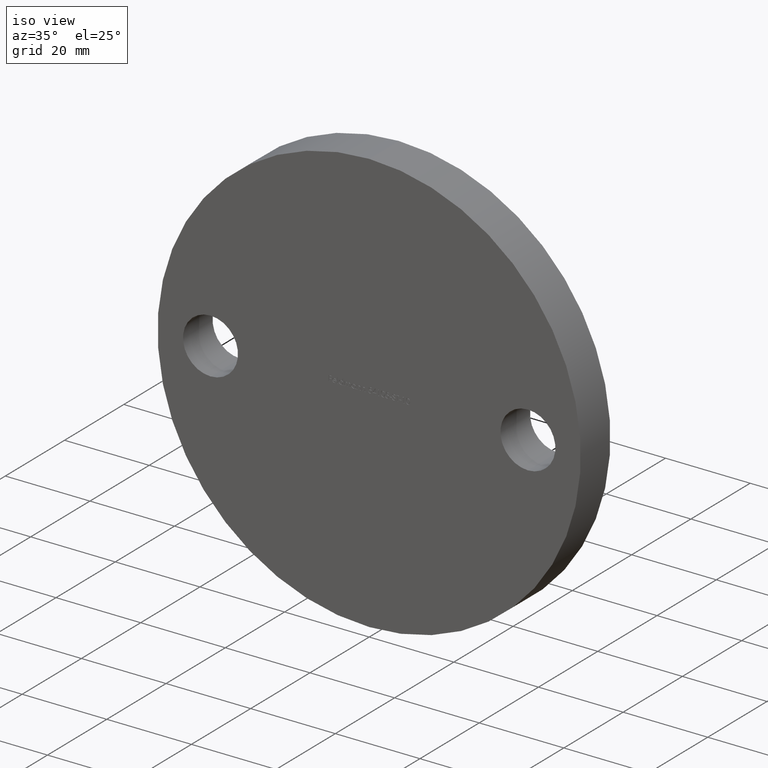
[diagram: clean part render]
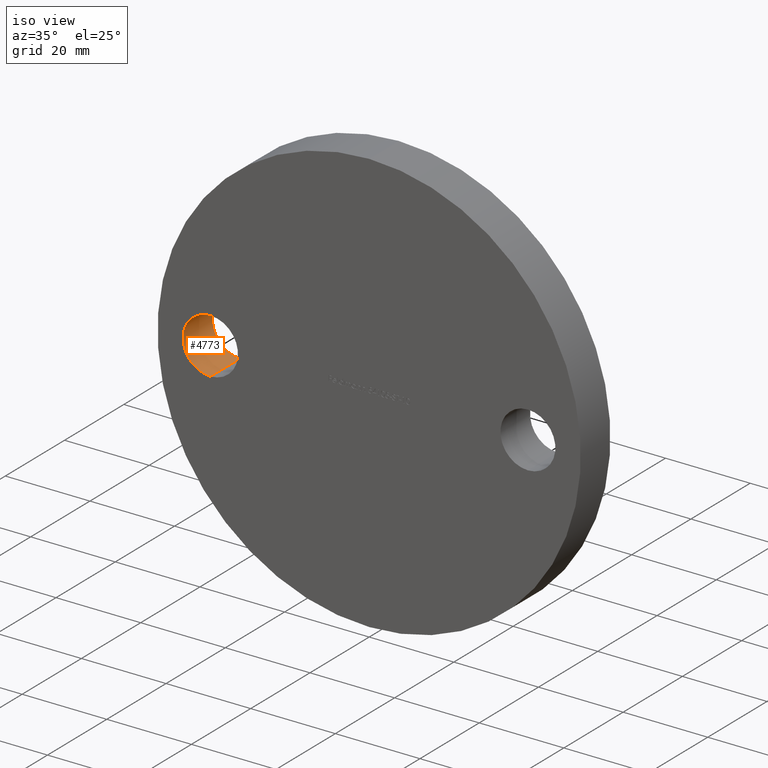
[diagram: same view with one face highlighted and labeled with its STEP entity id]
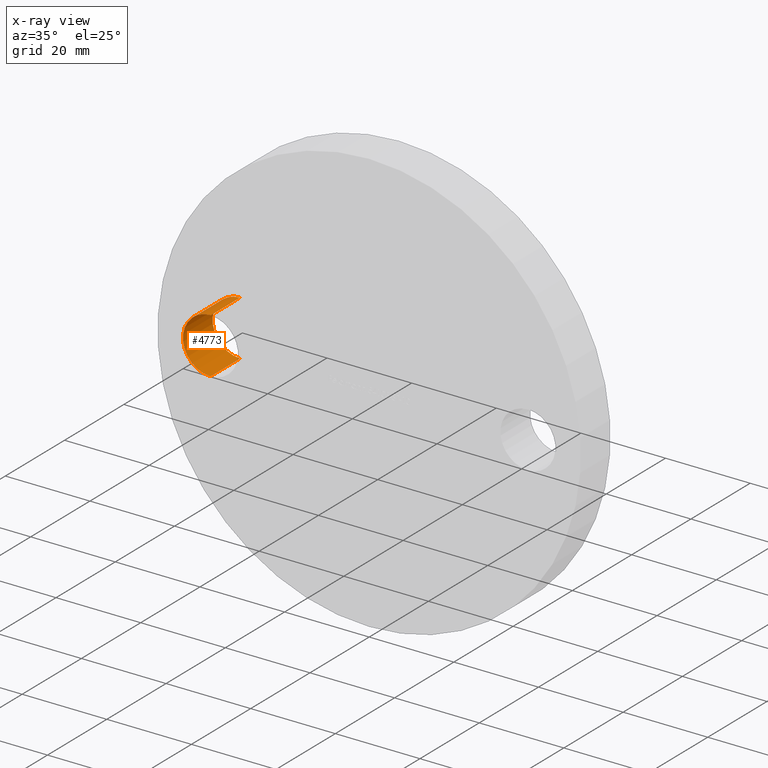
[diagram: x-ray of the same camera — body ghosted, the highlighted face saturated]
A machine part, iso view. The second image highlights one B-rep face of the part: STEP entity #4773.
The next image is the same camera in x-ray: the body ghosted, the highlighted face saturated — about 0% of this face is hidden behind the body in this view.
In plain terms, the highlighted cylindrical surface (edge-blend (fillet) strip) has radius 6.5 mm, axis along (-0, 1, -0).
Its self-contained STEP definition (entity closure, byte-faithful):
#114 = DIRECTION ( 'NONE',  ( -0.0000000000000000000, 1.000000000000000000, -0.0000000000000000000 ) ) ;
#205 = CARTESIAN_POINT ( 'NONE',  ( -37.50000000000000000, 10.00000000000000000, -6.500000000000000900 ) ) ;
#634 = EDGE_CURVE ( 'NONE', #6451, #5698, #2966, .T. ) ;
#1891 = CARTESIAN_POINT ( 'NONE',  ( -37.50000000000000000, 0.0000000000000000000, -6.500000000000000900 ) ) ;
#2284 = AXIS2_PLACEMENT_3D ( 'NONE', #10359, #4747, #10650 ) ;
#2533 = EDGE_LOOP ( 'NONE', ( #9426, #4470, #8525, #10162 ) ) ;
#2966 = LINE ( 'NONE', #11250, #9836 ) ;
#3211 = CYLINDRICAL_SURFACE ( 'NONE', #7556, 6.500000000000000900 ) ;
#3639 = LINE ( 'NONE', #4603, #5328 ) ;
#3674 = CARTESIAN_POINT ( 'NONE',  ( -37.50000000000000000, 0.0000000000000000000, 0.0000000000000000000 ) ) ;
#4081 = VERTEX_POINT ( 'NONE', #8648 ) ;
#4385 = EDGE_CURVE ( 'NONE', #6451, #12504, #5497, .T. ) ;
#4470 = ORIENTED_EDGE ( 'NONE', *, *, #634, .T. ) ;
#4603 = CARTESIAN_POINT ( 'NONE',  ( -37.50000000000000000, 0.0000000000000000000, 6.500000000000000900 ) ) ;
#4747 = DIRECTION ( 'NONE',  ( 0.0000000000000000000, 1.000000000000000000, 0.0000000000000000000 ) ) ;
#4773 = ADVANCED_FACE ( 'NONE', ( #9469 ), #3211, .F. ) ;
#5328 = VECTOR ( 'NONE', #9327, 1000.000000000000000 ) ;
#5497 = CIRCLE ( 'NONE', #10446, 6.500000000000000900 ) ;
#5698 = VERTEX_POINT ( 'NONE', #205 ) ;
#6451 = VERTEX_POINT ( 'NONE', #1891 ) ;
#6778 = CARTESIAN_POINT ( 'NONE',  ( -37.50000000000000000, 0.0000000000000000000, 6.500000000000000900 ) ) ;
#7556 = AXIS2_PLACEMENT_3D ( 'NONE', #9924, #114, #10932 ) ;
#7895 = EDGE_CURVE ( 'NONE', #12504, #4081, #3639, .T. ) ;
#8281 = EDGE_CURVE ( 'NONE', #5698, #4081, #12505, .T. ) ;
#8494 = DIRECTION ( 'NONE',  ( -0.0000000000000000000, 1.000000000000000000, -0.0000000000000000000 ) ) ;
#8525 = ORIENTED_EDGE ( 'NONE', *, *, #8281, .T. ) ;
#8648 = CARTESIAN_POINT ( 'NONE',  ( -37.50000000000000000, 10.00000000000000000, 6.500000000000000900 ) ) ;
#9327 = DIRECTION ( 'NONE',  ( -0.0000000000000000000, 1.000000000000000000, -0.0000000000000000000 ) ) ;
#9426 = ORIENTED_EDGE ( 'NONE', *, *, #4385, .F. ) ;
#9457 = DIRECTION ( 'NONE',  ( 0.0000000000000000000, 0.0000000000000000000, 1.000000000000000000 ) ) ;
#9469 = FACE_OUTER_BOUND ( 'NONE', #2533, .T. ) ;
#9535 = DIRECTION ( 'NONE',  ( 0.0000000000000000000, 1.000000000000000000, 0.0000000000000000000 ) ) ;
#9836 = VECTOR ( 'NONE', #8494, 1000.000000000000000 ) ;
#9924 = CARTESIAN_POINT ( 'NONE',  ( -37.50000000000000000, 0.0000000000000000000, 0.0000000000000000000 ) ) ;
#10162 = ORIENTED_EDGE ( 'NONE', *, *, #7895, .F. ) ;
#10359 = CARTESIAN_POINT ( 'NONE',  ( -37.50000000000000000, 10.00000000000000000, 0.0000000000000000000 ) ) ;
#10446 = AXIS2_PLACEMENT_3D ( 'NONE', #3674, #9535, #9457 ) ;
#10650 = DIRECTION ( 'NONE',  ( 0.0000000000000000000, 0.0000000000000000000, 1.000000000000000000 ) ) ;
#10932 = DIRECTION ( 'NONE',  ( 0.0000000000000000000, 0.0000000000000000000, 1.000000000000000000 ) ) ;
#11250 = CARTESIAN_POINT ( 'NONE',  ( -37.50000000000000000, 0.0000000000000000000, -6.500000000000000900 ) ) ;
#12504 = VERTEX_POINT ( 'NONE', #6778 ) ;
#12505 = CIRCLE ( 'NONE', #2284, 6.500000000000000900 ) ;